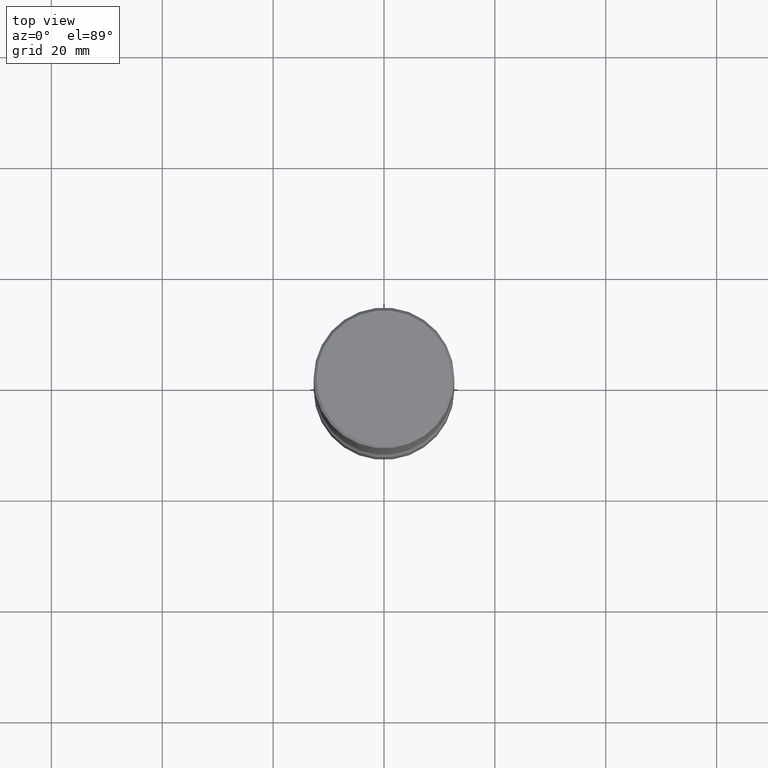
[diagram: clean part render]
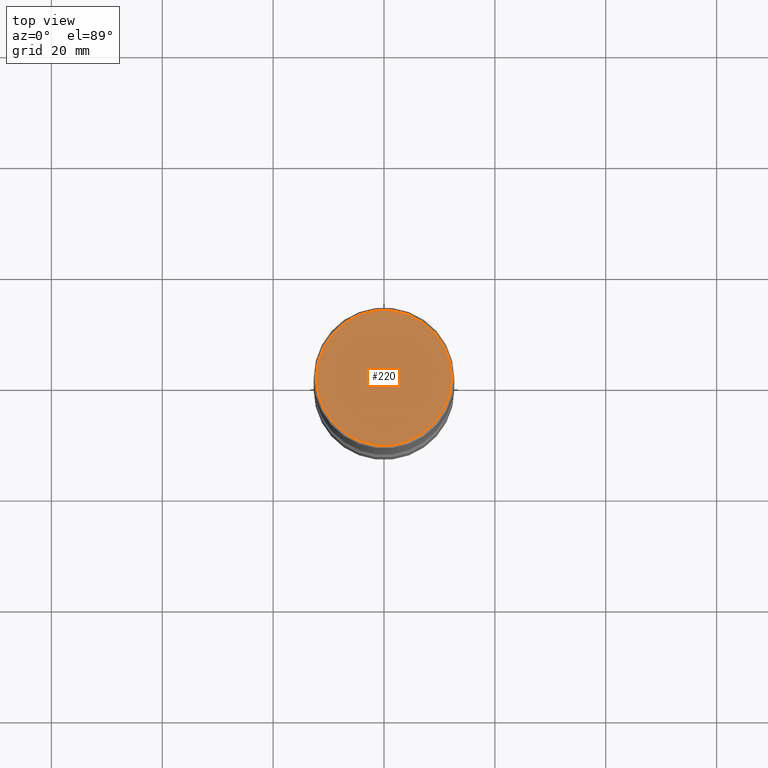
[diagram: same view with one face highlighted and labeled with its STEP entity id]
A machine part, top view. The second image highlights one B-rep face of the part: STEP entity #220.
In plain terms, the highlighted planar face has unit normal (0, -0, -1).
Its self-contained STEP definition (entity closure, byte-faithful):
#1 = EDGE_CURVE ( 'NONE', #714, #13, #568, .T. ) ;
#12 = DIRECTION ( 'NONE',  ( -1.000000000000000000, 6.982962677686265922E-15, -4.876176775795935793E-29 ) ) ;
#13 = VERTEX_POINT ( 'NONE', #71 ) ;
#16 = DIRECTION ( 'NONE',  ( 2.438088387897960049E-29, -3.491481338843145188E-15, -1.000000000000000000 ) ) ;
#71 = CARTESIAN_POINT ( 'NONE',  ( -0.4799999999999996492, 3.386736898677836436E-15, 1.280553747027767124E-17 ) ) ;
#80 = PLANE ( 'NONE',  #504 ) ;
#86 = CARTESIAN_POINT ( 'NONE',  ( -3.131554243005659264E-46, 4.471029511141341874E-32, 1.280553747030123384E-17 ) ) ;
#193 = EDGE_LOOP ( 'NONE', ( #432, #627 ) ) ;
#220 = ADVANCED_FACE ( 'NONE', ( #270 ), #80, .F. ) ;
#270 = FACE_OUTER_BOUND ( 'NONE', #193, .T. ) ;
#330 = CARTESIAN_POINT ( 'NONE',  ( -3.131554243005659264E-46, 4.471029511141341874E-32, 1.280553747030123384E-17 ) ) ;
#347 = DIRECTION ( 'NONE',  ( -2.445468806185136597E-29, 3.491481338843145583E-15, 1.000000000000000000 ) ) ;
#425 = AXIS2_PLACEMENT_3D ( 'NONE', #330, #614, #502 ) ;
#432 = ORIENTED_EDGE ( 'NONE', *, *, #606, .T. ) ;
#484 = CARTESIAN_POINT ( 'NONE',  ( 0.4799999999999996492, -3.396558832296479732E-15, 1.280553747032483033E-17 ) ) ;
#502 = DIRECTION ( 'NONE',  ( 1.000000000000000000, -6.982962677686267499E-15, 4.876036955247132767E-29 ) ) ;
#504 = AXIS2_PLACEMENT_3D ( 'NONE', #522, #16, #12 ) ;
#522 = CARTESIAN_POINT ( 'NONE',  ( 3.351822085289405181E-15, 0.4799999999999996492, -1.669508273909558064E-15 ) ) ;
#568 = CIRCLE ( 'NONE', #724, 0.4799999999999996492 ) ;
#606 = EDGE_CURVE ( 'NONE', #13, #714, #607, .T. ) ;
#607 = CIRCLE ( 'NONE', #425, 0.4799999999999996492 ) ;
#614 = DIRECTION ( 'NONE',  ( -2.445468806185136597E-29, 3.491481338843145583E-15, 1.000000000000000000 ) ) ;
#627 = ORIENTED_EDGE ( 'NONE', *, *, #1, .T. ) ;
#695 = DIRECTION ( 'NONE',  ( 1.000000000000000000, -6.982962677686267499E-15, 4.876036955247132767E-29 ) ) ;
#714 = VERTEX_POINT ( 'NONE', #484 ) ;
#724 = AXIS2_PLACEMENT_3D ( 'NONE', #86, #347, #695 ) ;